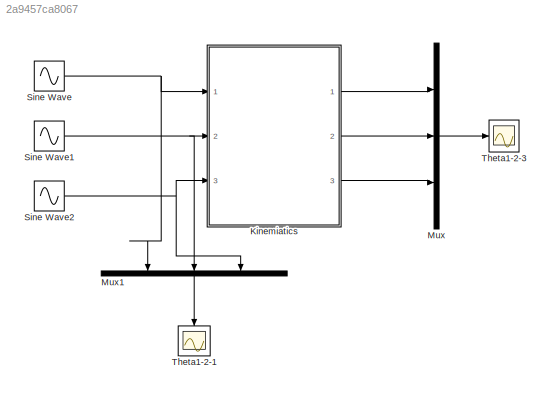
MODEL slx_2a9457ca8067
KIND model
CONFIG AbsTol = auto
CONFIG EnableMultiTasking = off
CONFIG FixedStep = auto
CONFIG MaxStep = auto
CONFIG MinStep = auto
CONFIG RelTol = 1e-3
CONFIG SampleTimeConstraint = Unconstrained
CONFIG SolverName = VariableStepAuto
CONFIG StartTime = 0.0
CONFIG StopTime = 20
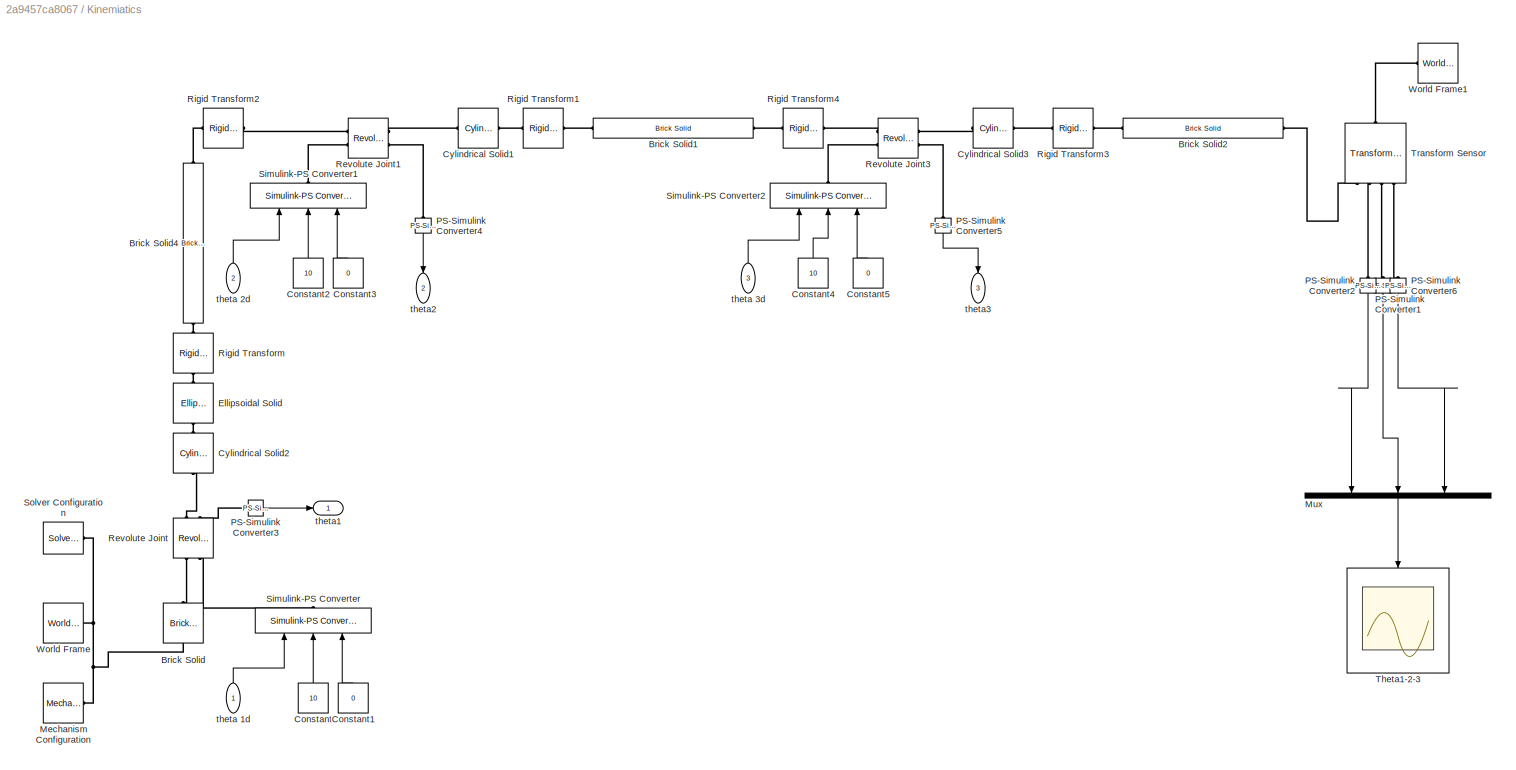
BLOCK [SubSystem] Kinemiatics
  Ports = [3, 3]
  RequestExecContextInheritance = off
BLOCK [Reference] Kinemiatics/Brick Solid  REF=sm_lib/Body Elements/Brick Solid
  NameLocation = left
  Ports = [0, 0, 0, 0, 0, 1, 1]
  SourceBlock = sm_lib/Body Elements/Brick Solid
  SourceProductBaseCode = MS
  SourceType = Brick Solid
BLOCK [Reference] Kinemiatics/Brick Solid1  REF=sm_lib/Body Elements/Brick Solid
  NameLocation = top
  Ports = [0, 0, 0, 0, 0, 1, 1]
  SourceBlock = sm_lib/Body Elements/Brick Solid
  SourceProductBaseCode = MS
  SourceType = Brick Solid
BLOCK [Reference] Kinemiatics/Brick Solid2  REF=sm_lib/Body Elements/Brick Solid
  NameLocation = top
  Ports = [0, 0, 0, 0, 0, 1, 1]
  SourceBlock = sm_lib/Body Elements/Brick Solid
  SourceProductBaseCode = MS
  SourceType = Brick Solid
BLOCK [Reference] Kinemiatics/Brick Solid4  REF=sm_lib/Body Elements/Brick Solid
  NameLocation = right
  Ports = [0, 0, 0, 0, 0, 1, 1]
  SourceBlock = sm_lib/Body Elements/Brick Solid
  SourceProductBaseCode = MS
  SourceType = Brick Solid
BLOCK [Constant] Kinemiatics/Constant
  NameLocation = right
  Value = 10
BLOCK [Constant] Kinemiatics/Constant1
  NameLocation = right
  Value = 0
BLOCK [Constant] Kinemiatics/Constant2
  NameLocation = right
  Value = 10
BLOCK [Constant] Kinemiatics/Constant3
  NameLocation = right
  Value = 0
BLOCK [Constant] Kinemiatics/Constant4
  NameLocation = right
  Value = 10
BLOCK [Constant] Kinemiatics/Constant5
  NameLocation = right
  Value = 0
BLOCK [Reference] Kinemiatics/Cylindrical Solid1  REF=sm_lib/Body Elements/Cylindrical Solid
  Ports = [0, 0, 0, 0, 0, 1, 1]
  SourceBlock = sm_lib/Body Elements/Cylindrical Solid
  SourceProductBaseCode = MS
  SourceType = Cylindrical Solid
BLOCK [Reference] Kinemiatics/Cylindrical Solid2  REF=sm_lib/Body Elements/Cylindrical Solid
  NameLocation = right
  Ports = [0, 0, 0, 0, 0, 1, 1]
  SourceBlock = sm_lib/Body Elements/Cylindrical Solid
  SourceProductBaseCode = MS
  SourceType = Cylindrical Solid
BLOCK [Reference] Kinemiatics/Cylindrical Solid3  REF=sm_lib/Body Elements/Cylindrical Solid
  NameLocation = top
  Ports = [0, 0, 0, 0, 0, 1, 1]
  SourceBlock = sm_lib/Body Elements/Cylindrical Solid
  SourceProductBaseCode = MS
  SourceType = Cylindrical Solid
BLOCK [Reference] Kinemiatics/Ellipsoidal Solid  REF=sm_lib/Body Elements/Ellipsoidal Solid
  NameLocation = right
  Ports = [0, 0, 0, 0, 0, 1, 1]
  SourceBlock = sm_lib/Body Elements/Ellipsoidal Solid
  SourceProductBaseCode = MS
  SourceType = Ellipsoidal Solid
BLOCK [Reference] Kinemiatics/Mechanism Configuration  REF=sm_lib/Utilities/Mechanism
Configuration
  Ports = [0, 0, 0, 0, 0, 0, 1]
  SourceBlock = sm_lib/Utilities/Mechanism\nConfiguration
  SourceProductBaseCode = MS
  SourceType = Mechanism\nConfiguration
BLOCK [Mux] Kinemiatics/Mux
  DisplayOption = bar
  Inputs = 3
  NameLocation = left
  Ports = [3, 1]
BLOCK [Reference] Kinemiatics/PS-Simulink Converter1  REF=nesl_utility/PS-Simulink
Converter
  NameLocation = left
  Ports = [0, 1, 0, 0, 0, 1]
  SourceBlock = nesl_utility/PS-Simulink\nConverter
  SourceProductBaseCode = PW,SS
  SourceType = PS-Simulink\nConverter
BLOCK [Reference] Kinemiatics/PS-Simulink Converter2  REF=nesl_utility/PS-Simulink
Converter
  NameLocation = left
  Ports = [0, 1, 0, 0, 0, 1]
  SourceBlock = nesl_utility/PS-Simulink\nConverter
  SourceProductBaseCode = PW,SS
  SourceType = PS-Simulink\nConverter
BLOCK [Reference] Kinemiatics/PS-Simulink Converter3  REF=nesl_utility/PS-Simulink
Converter
  Ports = [0, 1, 0, 0, 0, 1]
  SourceBlock = nesl_utility/PS-Simulink\nConverter
  SourceProductBaseCode = PW,SS
  SourceType = PS-Simulink\nConverter
BLOCK [Reference] Kinemiatics/PS-Simulink Converter4  REF=nesl_utility/PS-Simulink
Converter
  NameLocation = left
  Ports = [0, 1, 0, 0, 0, 1]
  SourceBlock = nesl_utility/PS-Simulink\nConverter
  SourceProductBaseCode = PW,SS
  SourceType = PS-Simulink\nConverter
BLOCK [Reference] Kinemiatics/PS-Simulink Converter5  REF=nesl_utility/PS-Simulink
Converter
  NameLocation = left
  Ports = [0, 1, 0, 0, 0, 1]
  SourceBlock = nesl_utility/PS-Simulink\nConverter
  SourceProductBaseCode = PW,SS
  SourceType = PS-Simulink\nConverter
BLOCK [Reference] Kinemiatics/PS-Simulink Converter6  REF=nesl_utility/PS-Simulink
Converter
  NameLocation = left
  Ports = [0, 1, 0, 0, 0, 1]
  SourceBlock = nesl_utility/PS-Simulink\nConverter
  SourceProductBaseCode = PW,SS
  SourceType = PS-Simulink\nConverter
BLOCK [Reference] Kinemiatics/Revolute Joint  REF=sm_lib/Joints/Revolute Joint
  NameLocation = right
  Ports = [0, 0, 0, 0, 0, 2, 2]
  SourceBlock = sm_lib/Joints/Revolute Joint
  SourceProductBaseCode = MS
  SourceType = Revolute Joint
BLOCK [Reference] Kinemiatics/Revolute Joint1  REF=sm_lib/Joints/Revolute Joint
  Ports = [0, 0, 0, 0, 0, 2, 2]
  SourceBlock = sm_lib/Joints/Revolute Joint
  SourceProductBaseCode = MS
  SourceType = Revolute Joint
BLOCK [Reference] Kinemiatics/Revolute Joint3  REF=sm_lib/Joints/Revolute Joint
  Ports = [0, 0, 0, 0, 0, 2, 2]
  SourceBlock = sm_lib/Joints/Revolute Joint
  SourceProductBaseCode = MS
  SourceType = Revolute Joint
BLOCK [Reference] Kinemiatics/Rigid Transform  REF=sm_lib/Frames and
Transforms/Rigid
Transform
  NameLocation = right
  Ports = [0, 0, 0, 0, 0, 1, 1]
  SourceBlock = sm_lib/Frames and\nTransforms/Rigid\nTransform
  SourceProductBaseCode = MS
  SourceType = Rigid\nTransform
BLOCK [Reference] Kinemiatics/Rigid Transform1  REF=sm_lib/Frames and
Transforms/Rigid
Transform
  Ports = [0, 0, 0, 0, 0, 1, 1]
  SourceBlock = sm_lib/Frames and\nTransforms/Rigid\nTransform
  SourceProductBaseCode = MS
  SourceType = Rigid\nTransform
BLOCK [Reference] Kinemiatics/Rigid Transform2  REF=sm_lib/Frames and
Transforms/Rigid
Transform
  Ports = [0, 0, 0, 0, 0, 1, 1]
  SourceBlock = sm_lib/Frames and\nTransforms/Rigid\nTransform
  SourceProductBaseCode = MS
  SourceType = Rigid\nTransform
BLOCK [Reference] Kinemiatics/Rigid Transform3  REF=sm_lib/Frames and
Transforms/Rigid
Transform
  Ports = [0, 0, 0, 0, 0, 1, 1]
  SourceBlock = sm_lib/Frames and\nTransforms/Rigid\nTransform
  SourceProductBaseCode = MS
  SourceType = Rigid\nTransform
BLOCK [Reference] Kinemiatics/Rigid Transform4  REF=sm_lib/Frames and
Transforms/Rigid
Transform
  Ports = [0, 0, 0, 0, 0, 1, 1]
  SourceBlock = sm_lib/Frames and\nTransforms/Rigid\nTransform
  SourceProductBaseCode = MS
  SourceType = Rigid\nTransform
BLOCK [Reference] Kinemiatics/Simulink-PS Converter  REF=nesl_utility/Simulink-PS
Converter
  NameLocation = right
  Ports = [3, 0, 0, 0, 0, 0, 1]
  SourceBlock = nesl_utility/Simulink-PS\nConverter
  SourceProductBaseCode = PW,SS
  SourceType = Simulink-PS\nConverter
BLOCK [Reference] Kinemiatics/Simulink-PS Converter1  REF=nesl_utility/Simulink-PS
Converter
  NameLocation = right
  Ports = [3, 0, 0, 0, 0, 0, 1]
  SourceBlock = nesl_utility/Simulink-PS\nConverter
  SourceProductBaseCode = PW,SS
  SourceType = Simulink-PS\nConverter
BLOCK [Reference] Kinemiatics/Simulink-PS Converter2  REF=nesl_utility/Simulink-PS
Converter
  NameLocation = right
  Ports = [3, 0, 0, 0, 0, 0, 1]
  SourceBlock = nesl_utility/Simulink-PS\nConverter
  SourceProductBaseCode = PW,SS
  SourceType = Simulink-PS\nConverter
BLOCK [Reference] Kinemiatics/Solver Configuration  REF=nesl_utility/Solver
Configuration
  Ports = [0, 0, 0, 0, 0, 0, 1]
  SourceBlock = nesl_utility/Solver\nConfiguration
  SourceProductBaseCode = PW,SS
  SourceType = Solver\nConfiguration
BLOCK [Scope] Kinemiatics/Theta1-2-3
  Floating = off
  NameLocation = left
  NumInputPorts = 1
  Ports = [1]
  ScopeSpecificationString = Simulink.scopes.TimeScopeBlockCfg('CurrentConfiguration', extmgr.ConfigurationSet(extmgr.Configuration('Core','General UI',true),extmgr.Configuration('Core','Source UI',true),extmgr.Configuration('Sources','WiredSimulink',true,'DataLoggingVariableName','ScopeData1'),extmgr.Configuration('Visuals','Time Domain',true,'SerializedDisplays',{struct('MinYLimReal','-12.18079','MaxYLimReal','47.61385','YL...<+1467ch>
BLOCK [Reference] Kinemiatics/Transform Sensor  REF=sm_lib/Frames and
Transforms/Transform
Sensor
  NameLocation = left
  Ports = [0, 0, 0, 0, 0, 1, 4]
  SourceBlock = sm_lib/Frames and\nTransforms/Transform\nSensor
  SourceProductBaseCode = MS
  SourceType = Transform\nSensor
BLOCK [Reference] Kinemiatics/World Frame  REF=sm_lib/Frames and
Transforms/World Frame
  Ports = [0, 0, 0, 0, 0, 0, 1]
  SourceBlock = sm_lib/Frames and\nTransforms/World Frame
  SourceProductBaseCode = MS
  SourceType = World Frame
BLOCK [Reference] Kinemiatics/World Frame1  REF=sm_lib/Frames and
Transforms/World Frame
  NameLocation = top
  Ports = [0, 0, 0, 0, 0, 0, 1]
  SourceBlock = sm_lib/Frames and\nTransforms/World Frame
  SourceProductBaseCode = MS
  SourceType = World Frame
BLOCK [Inport] Kinemiatics/theta 1d
  NameLocation = right
BLOCK [Inport] Kinemiatics/theta 2d
  NameLocation = right
  Port = 2
BLOCK [Inport] Kinemiatics/theta 3d
  NameLocation = right
  Port = 3
BLOCK [Outport] Kinemiatics/theta1
  VectorParamsAs1DForOutWhenUnconnected = off
BLOCK [Outport] Kinemiatics/theta2
  NameLocation = left
  Port = 2
  VectorParamsAs1DForOutWhenUnconnected = off
BLOCK [Outport] Kinemiatics/theta3
  NameLocation = left
  Port = 3
  VectorParamsAs1DForOutWhenUnconnected = off
BLOCK [Mux] Mux
  DisplayOption = bar
  Inputs = 3
  Ports = [3, 1]
BLOCK [Mux] Mux1
  DisplayOption = bar
  Inputs = 3
  NameLocation = left
  Ports = [3, 1]
BLOCK [Sin] Sine Wave
  Amplitude = 0
  Ports = [0, 1]
  SampleTime = 0
BLOCK [Sin] Sine Wave1
  Amplitude = 0
  Ports = [0, 1]
  SampleTime = 0
BLOCK [Sin] Sine Wave2
  Amplitude = 0
  Bias = 1
  Ports = [0, 1]
  SampleTime = 0
BLOCK [Scope] Theta1-2-1
  Floating = off
  NameLocation = left
  NumInputPorts = 1
  Ports = [1]
  ScopeSpecificationString = Simulink.scopes.TimeScopeBlockCfg('CurrentConfiguration', extmgr.ConfigurationSet(extmgr.Configuration('Core','General UI',true),extmgr.Configuration('Core','Source UI',true),extmgr.Configuration('Sources','WiredSimulink',true,'DataLoggingVariableName','ScopeData1'),extmgr.Configuration('Visuals','Time Domain',true,'SerializedDisplays',{struct('MinYLimReal','-1.24994','MaxYLimReal','1.24952','YLab...<+1424ch>
BLOCK [Scope] Theta1-2-3
  Floating = off
  NumInputPorts = 1
  Ports = [1]
  ScopeSpecificationString = Simulink.scopes.TimeScopeBlockCfg('CurrentConfiguration', extmgr.ConfigurationSet(extmgr.Configuration('Core','General UI',true),extmgr.Configuration('Core','Source UI',true),extmgr.Configuration('Sources','WiredSimulink',true),extmgr.Configuration('Visuals','Time Domain',true,'SerializedDisplays',{struct('MinYLimReal','-0.125','MaxYLimReal','1.125','YLabelReal','','MinYLimMag','0.00000','MaxYLimM...<+1383ch>
LINE Kinemiatics/Constant1:1 -> Kinemiatics/Simulink-PS Converter:3
LINE Kinemiatics/Constant2:1 -> Kinemiatics/Simulink-PS Converter1:2
LINE Kinemiatics/Constant3:1 -> Kinemiatics/Simulink-PS Converter1:3
LINE Kinemiatics/Constant4:1 -> Kinemiatics/Simulink-PS Converter2:2
LINE Kinemiatics/Constant5:1 -> Kinemiatics/Simulink-PS Converter2:3
LINE Kinemiatics/Constant:1 -> Kinemiatics/Simulink-PS Converter:2
LINE Kinemiatics/Mux:1 -> Kinemiatics/Theta1-2-3:1
LINE Kinemiatics/PS-Simulink Converter1:1 -> Kinemiatics/Mux:2
LINE Kinemiatics/PS-Simulink Converter2:1 -> Kinemiatics/Mux:1
LINE Kinemiatics/PS-Simulink Converter3:1 -> Kinemiatics/theta1:1
LINE Kinemiatics/PS-Simulink Converter4:1 -> Kinemiatics/theta2:1
LINE Kinemiatics/PS-Simulink Converter5:1 -> Kinemiatics/theta3:1
LINE Kinemiatics/PS-Simulink Converter6:1 -> Kinemiatics/Mux:3
LINE Kinemiatics/theta 1d:1 -> Kinemiatics/Simulink-PS Converter:1
LINE Kinemiatics/theta 2d:1 -> Kinemiatics/Simulink-PS Converter1:1
LINE Kinemiatics/theta 3d:1 -> Kinemiatics/Simulink-PS Converter2:1
LINE Kinemiatics:1 -> Mux:1
LINE Kinemiatics:2 -> Mux:2
LINE Kinemiatics:3 -> Mux:3
LINE Mux1:1 -> Theta1-2-1:1
LINE Mux:1 -> Theta1-2-3:1
NET Sine Wave1:1 -> Kinemiatics:2, Mux1:2
NET Sine Wave2:1 -> Kinemiatics:3, Mux1:3
NET Sine Wave:1 -> Kinemiatics:1, Mux1:1
PLINE Kinemiatics/Brick Solid1:LConn1 -- Kinemiatics/Rigid Transform1:RConn1
PLINE Kinemiatics/Brick Solid1:RConn1 -- Kinemiatics/Rigid Transform4:LConn1
PLINE Kinemiatics/Brick Solid2:LConn1 -- Kinemiatics/Rigid Transform3:RConn1
PLINE Kinemiatics/Brick Solid2:RConn1 -- Kinemiatics/Transform Sensor:RConn1
PLINE Kinemiatics/Brick Solid4:LConn1 -- Kinemiatics/Rigid Transform:RConn1
PLINE Kinemiatics/Brick Solid4:RConn1 -- Kinemiatics/Rigid Transform2:LConn1
PLINE Kinemiatics/Brick Solid:LConn1 -- Kinemiatics/Revolute Joint:LConn1
PNET net1: Kinemiatics/Brick Solid:RConn1 -- Kinemiatics/Mechanism Configuration:RConn1 -- Kinemiatics/Solver Configuration:RConn1 -- Kinemiatics/World Frame:RConn1
PLINE Kinemiatics/Cylindrical Solid1:LConn1 -- Kinemiatics/Revolute Joint1:RConn1
PLINE Kinemiatics/Cylindrical Solid1:RConn1 -- Kinemiatics/Rigid Transform1:LConn1
PLINE Kinemiatics/Cylindrical Solid2:LConn1 -- Kinemiatics/Revolute Joint:RConn1
PLINE Kinemiatics/Cylindrical Solid2:RConn1 -- Kinemiatics/Ellipsoidal Solid:LConn1
PLINE Kinemiatics/Cylindrical Solid3:LConn1 -- Kinemiatics/Rigid Transform3:LConn1
PLINE Kinemiatics/Cylindrical Solid3:RConn1 -- Kinemiatics/Revolute Joint3:RConn1
PLINE Kinemiatics/Ellipsoidal Solid:RConn1 -- Kinemiatics/Rigid Transform:LConn1
PLINE Kinemiatics/PS-Simulink Converter1:LConn1 -- Kinemiatics/Transform Sensor:RConn3
PLINE Kinemiatics/PS-Simulink Converter2:LConn1 -- Kinemiatics/Transform Sensor:RConn2
PLINE Kinemiatics/PS-Simulink Converter3:LConn1 -- Kinemiatics/Revolute Joint:RConn2
PLINE Kinemiatics/PS-Simulink Converter4:LConn1 -- Kinemiatics/Revolute Joint1:RConn2
PLINE Kinemiatics/PS-Simulink Converter5:LConn1 -- Kinemiatics/Revolute Joint3:RConn2
PLINE Kinemiatics/PS-Simulink Converter6:LConn1 -- Kinemiatics/Transform Sensor:RConn4
PLINE Kinemiatics/Revolute Joint1:LConn1 -- Kinemiatics/Rigid Transform2:RConn1
PLINE Kinemiatics/Revolute Joint1:LConn2 -- Kinemiatics/Simulink-PS Converter1:RConn1
PLINE Kinemiatics/Revolute Joint3:LConn1 -- Kinemiatics/Rigid Transform4:RConn1
PLINE Kinemiatics/Revolute Joint3:LConn2 -- Kinemiatics/Simulink-PS Converter2:RConn1
PLINE Kinemiatics/Revolute Joint:LConn2 -- Kinemiatics/Simulink-PS Converter:RConn1
PLINE Kinemiatics/Transform Sensor:LConn1 -- Kinemiatics/World Frame1:RConn1
note: NET lines group one-source signal fan-out (src -> all destinations, sorted); 1:1 wires keep LINE; PNET lines group multi-terminal physical nets as a canonical sorted terminal list (undirected conserving connections); 2-terminal nets keep the pairwise PLINE form
